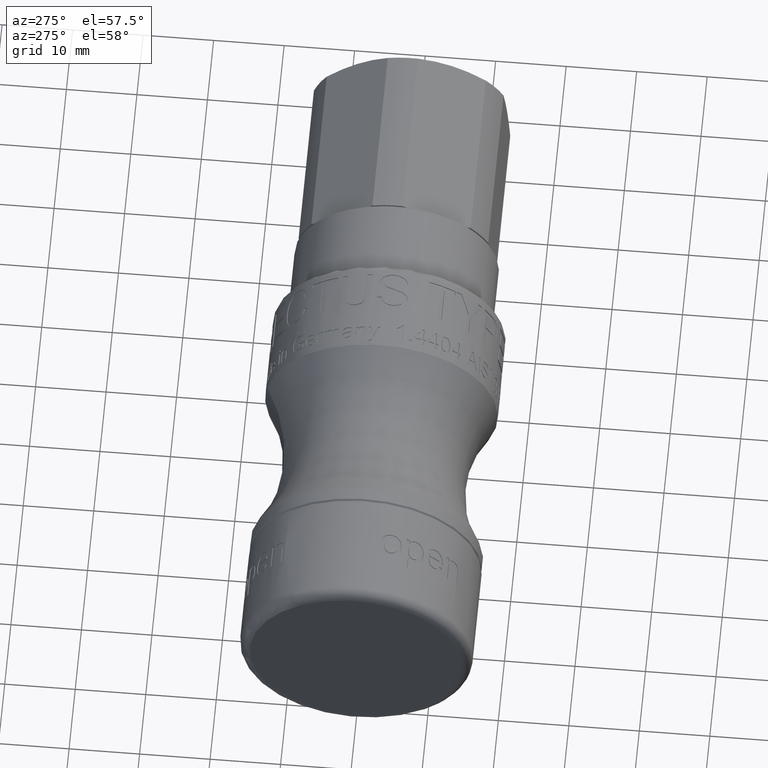
[diagram: clean part render]
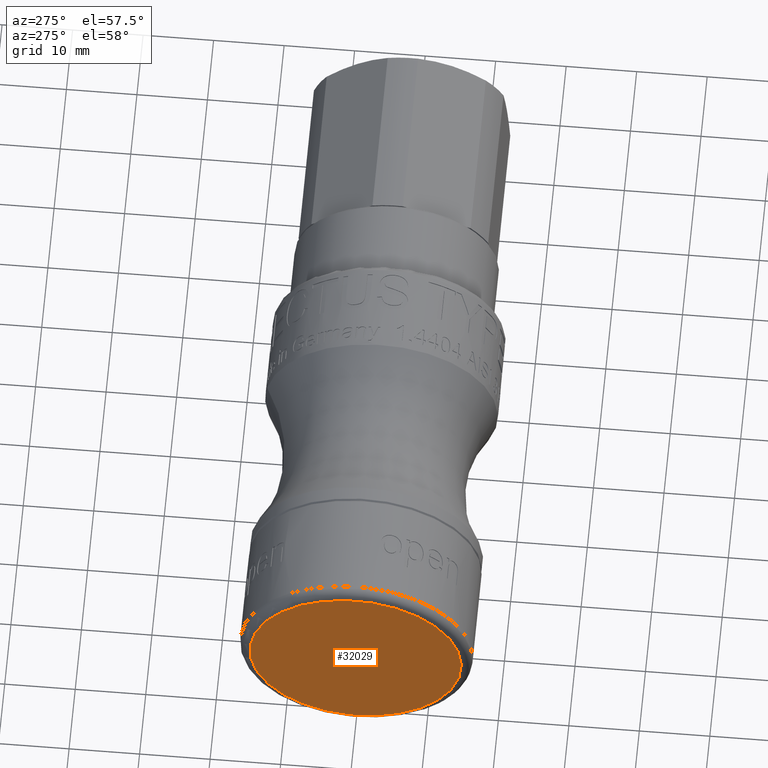
[diagram: same view with one face highlighted and labeled with its STEP entity id]
A machine part, auxiliary view. The second image highlights one B-rep face of the part: STEP entity #32029.
In plain terms, the highlighted planar face has unit normal (-1, 0, 0).
Its self-contained STEP definition (entity closure, byte-faithful):
#32013=CARTESIAN_POINT('',(-2.800000000000003,11.72452662578366,-7.944298688448842));
#32014=DIRECTION('',(-1.0,0.0,0.0));
#32015=DIRECTION('',(0.0,0.560939007127897,0.827857131564601));
#32016=AXIS2_PLACEMENT_3D('',#32013,#32014,#32015);
#32017=PLANE('',#32016);
#32018=CARTESIAN_POINT('',(-2.800000000000003,12.417856973469018,-8.414085106918456));
#32019=VERTEX_POINT('',#32018);
#32020=CARTESIAN_POINT('',(-2.800000000000003,0.0,0.0));
#32021=DIRECTION('',(1.0,0.0,0.0));
#32022=DIRECTION('',(0.0,-0.827857131564601,0.560939007127897));
#32023=AXIS2_PLACEMENT_3D('',#32020,#32021,#32022);
#32024=CIRCLE('',#32023,15.000000000000004);
#32025=EDGE_CURVE('',#32019,#32019,#32024,.T.);
#32026=ORIENTED_EDGE('',*,*,#32025,.F.);
#32027=EDGE_LOOP('',(#32026));
#32028=FACE_OUTER_BOUND('',#32027,.T.);
#32029=ADVANCED_FACE('',(#32028),#32017,.T.);